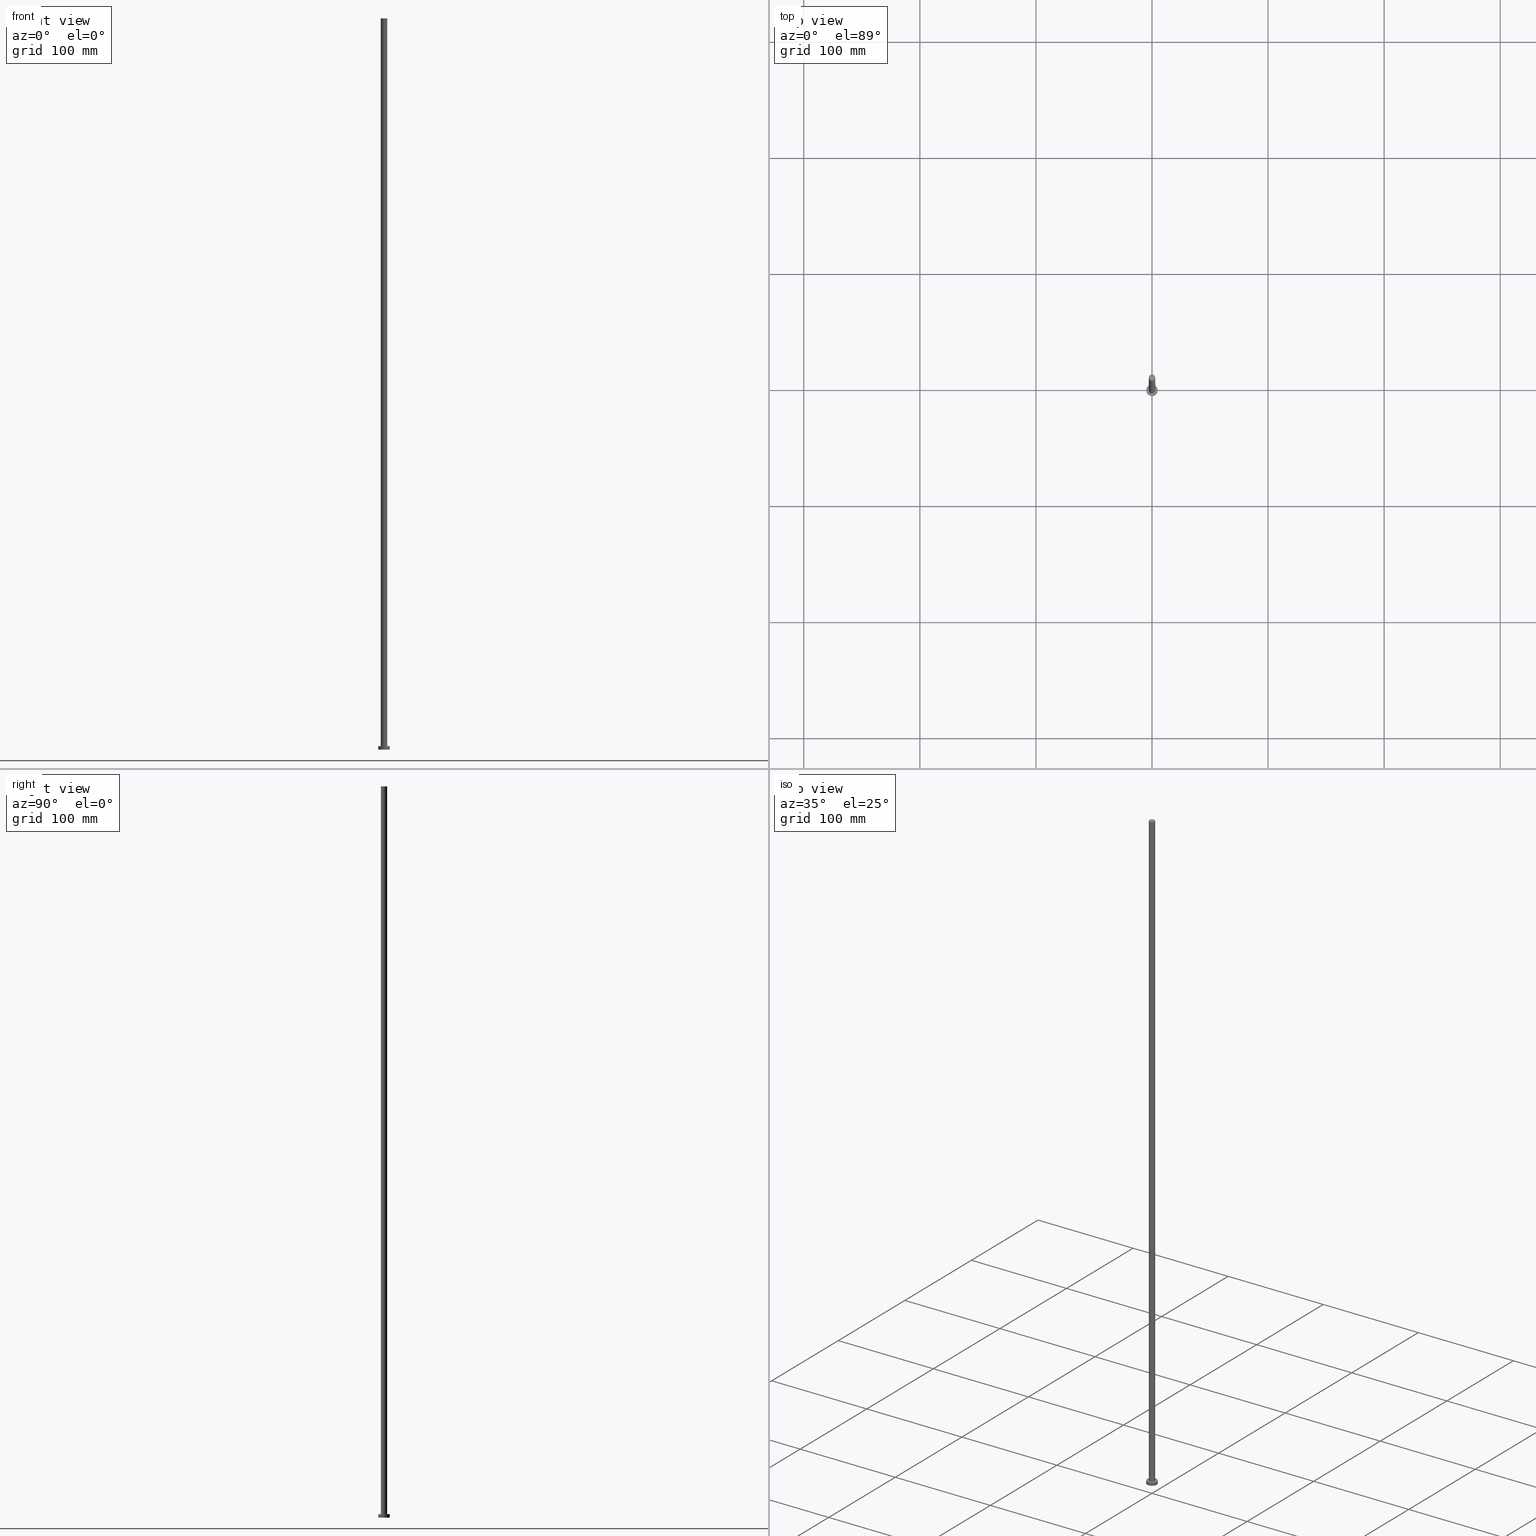
[diagram: canonical four-view strip — front | top / right | iso, engineering-drawing reading convention]
A machine part, canonical four-view strip (front | top / right | iso — engineering-drawing reading convention). The complete STEP part file that produces these views, byte-faithful:
ISO-10303-21;
HEADER;
FILE_DESCRIPTION (( 'STEP AP203' ),
    '1' );
FILE_NAME ('37a4.STEP',
    '2026-02-06T12:40:39',
    ( '' ),
    ( '' ),
    'SwSTEP 2.0',
    'SolidWorks 2019',
    '' );
FILE_SCHEMA (( 'CONFIG_CONTROL_DESIGN' ));
ENDSEC;

DATA;
#1 = LINE ( 'NONE', #174, #39 ) ;
#2 = PERSON_AND_ORGANIZATION_ROLE ( 'creator' ) ;
#3 = EDGE_CURVE ( 'NONE', #24, #222, #52, .T. ) ;
#4 = LOCAL_TIME ( 13, 40, 39.00000000000000000, #105 ) ;
#5 = ORIENTED_EDGE ( 'NONE', *, *, #44, .F. ) ;
#6 = AXIS2_PLACEMENT_3D ( 'NONE', #144, #227, #185 ) ;
#7 = PRODUCT_DEFINITION ( 'NEZN�M�', '', #132, #75 ) ;
#8 = ORGANIZATION ( 'NEUR�EN�', 'NEUR�EN�', '' ) ;
#9 = VECTOR ( 'NONE', #199, 1000.000000000000000 ) ;
#10 = AXIS2_PLACEMENT_3D ( 'NONE', #182, #115, #223 ) ;
#11 = EDGE_CURVE ( 'NONE', #112, #222, #241, .T. ) ;
#12 = CC_DESIGN_PERSON_AND_ORGANIZATION_ASSIGNMENT ( #155, #2, ( #7 ) ) ;
#13 = AXIS2_PLACEMENT_3D ( 'NONE', #216, #184, #64 ) ;
#14 = DIRECTION ( 'NONE',  ( 0.000000000000000000, 0.000000000000000000, 1.000000000000000000 ) ) ;
#15 = DIRECTION ( 'NONE',  ( 1.000000000000000000, 0.000000000000000000, 0.000000000000000000 ) ) ;
#16 = APPLICATION_PROTOCOL_DEFINITION ( 'international standard', 'config_control_design', 1994, #141 ) ;
#17 = DIRECTION ( 'NONE',  ( -0.000000000000000000, -0.000000000000000000, -1.000000000000000000 ) ) ;
#18 = ORIENTED_EDGE ( 'NONE', *, *, #250, .F. ) ;
#19 = CYLINDRICAL_SURFACE ( 'NONE', #248, 5.000000000000000000 ) ;
#20 = ORIENTED_EDGE ( 'NONE', *, *, #250, .T. ) ;
#21 = PERSON_AND_ORGANIZATION_ROLE ( 'design_supplier' ) ;
#22 = CARTESIAN_POINT ( 'NONE',  ( 0.000000000000000000, 0.000000000000000000, 3.000000000000000000 ) ) ;
#23 = DATE_AND_TIME ( #197, #84 ) ;
#24 = VERTEX_POINT ( 'NONE', #65 ) ;
#25 = EDGE_CURVE ( 'NONE', #72, #151, #226, .T. ) ;
#26 = CARTESIAN_POINT ( 'NONE',  ( -2.750000000000000000, 0.000000000000000000, 630.0000000000000000 ) ) ;
#27 = DATE_AND_TIME ( #240, #169 ) ;
#28 = CC_DESIGN_APPROVAL ( #114, ( #132 ) ) ;
#29 = APPROVAL_PERSON_ORGANIZATION ( #100, #79, #214 ) ;
#30 = CC_DESIGN_DATE_AND_TIME_ASSIGNMENT ( #63, #163, ( #7 ) ) ;
#31 =( NAMED_UNIT ( * ) PLANE_ANGLE_UNIT ( ) SI_UNIT ( $, .RADIAN. ) );
#32 = DIRECTION ( 'NONE',  ( 0.000000000000000000, 0.000000000000000000, 1.000000000000000000 ) ) ;
#33 = APPLICATION_CONTEXT ( 'configuration controlled 3d designs of mechanical parts and assemblies' ) ;
#34 = CC_DESIGN_PERSON_AND_ORGANIZATION_ASSIGNMENT ( #218, #43, ( #90 ) ) ;
#35 = VERTEX_POINT ( 'NONE', #168 ) ;
#36 = DIRECTION ( 'NONE',  ( 0.000000000000000000, 0.000000000000000000, 1.000000000000000000 ) ) ;
#37 = DIRECTION ( 'NONE',  ( -0.000000000000000000, -0.000000000000000000, -1.000000000000000000 ) ) ;
#38 = EDGE_LOOP ( 'NONE', ( #209, #18, #238, #236 ) ) ;
#39 = VECTOR ( 'NONE', #253, 1000.000000000000000 ) ;
#40 = AXIS2_PLACEMENT_3D ( 'NONE', #254, #87, #224 ) ;
#41 = COORDINATED_UNIVERSAL_TIME_OFFSET ( 1, 0, .AHEAD. ) ;
#42 = CARTESIAN_POINT ( 'NONE',  ( 5.000000000000000000, 6.123233995736766282E-16, 0.000000000000000000 ) ) ;
#43 = PERSON_AND_ORGANIZATION_ROLE ( 'classification_officer' ) ;
#44 = EDGE_CURVE ( 'NONE', #222, #24, #135, .T. ) ;
#45 = AXIS2_PLACEMENT_3D ( 'NONE', #246, #32, #66 ) ;
#46 = EDGE_CURVE ( 'NONE', #112, #35, #217, .T. ) ;
#47 = AXIS2_PLACEMENT_3D ( 'NONE', #245, #228, #130 ) ;
#48 = CIRCLE ( 'NONE', #89, 2.750000000000000000 ) ;
#49 = LOCAL_TIME ( 13, 40, 39.00000000000000000, #83 ) ;
#50 = ORIENTED_EDGE ( 'NONE', *, *, #142, .F. ) ;
#51 = PLANE ( 'NONE',  #131 ) ;
#52 = CIRCLE ( 'NONE', #40, 5.000000000000000000 ) ;
#53 = CARTESIAN_POINT ( 'NONE',  ( 0.000000000000000000, 0.000000000000000000, 3.000000000000000000 ) ) ;
#54 = ORIENTED_EDGE ( 'NONE', *, *, #239, .T. ) ;
#55 = DATE_AND_TIME ( #232, #4 ) ;
#56 = APPROVAL_DATE_TIME ( #55, #189 ) ;
#57 = PLANE ( 'NONE',  #108 ) ;
#58 = EDGE_LOOP ( 'NONE', ( #123, #50, #54, #191 ) ) ;
#59 = DIRECTION ( 'NONE',  ( 0.000000000000000000, 0.000000000000000000, 1.000000000000000000 ) ) ;
#60 = DIRECTION ( 'NONE',  ( -0.000000000000000000, -0.000000000000000000, -1.000000000000000000 ) ) ;
#61 = PERSON ( 'NEUR�EN�', 'NEUR�EN�', 'NEUR�EN�', ('NEUR�EN�'), ('NEUR�EN�'), ('NEUR�EN�') ) ;
#62 = APPROVAL_ROLE ( '' ) ;
#63 = DATE_AND_TIME ( #102, #49 ) ;
#64 = DIRECTION ( 'NONE',  ( 1.000000000000000000, 0.000000000000000000, 0.000000000000000000 ) ) ;
#65 = CARTESIAN_POINT ( 'NONE',  ( -5.000000000000000000, 0.000000000000000000, 0.000000000000000000 ) ) ;
#66 = DIRECTION ( 'NONE',  ( 1.000000000000000000, 0.000000000000000000, 0.000000000000000000 ) ) ;
#67 = CC_DESIGN_SECURITY_CLASSIFICATION ( #90, ( #132 ) ) ;
#68 = DATE_AND_TIME ( #178, #194 ) ;
#69 = UNCERTAINTY_MEASURE_WITH_UNIT (LENGTH_MEASURE( 1.000000000000000082E-05 ), #106, 'distance_accuracy_value', 'NONE');
#70 = FACE_OUTER_BOUND ( 'NONE', #38, .T. ) ;
#71 = ADVANCED_FACE ( 'NONE', ( #212, #181 ), #57, .T. ) ;
#72 = VERTEX_POINT ( 'NONE', #138 ) ;
#73 = AXIS2_PLACEMENT_3D ( 'NONE', #229, #110, #170 ) ;
#74 = CARTESIAN_POINT ( 'NONE',  ( 0.000000000000000000, 0.000000000000000000, 0.000000000000000000 ) ) ;
#75 = DESIGN_CONTEXT ( 'detailed design', #33, 'design' ) ;
#76 = APPROVAL_STATUS ( 'not_yet_approved' ) ;
#77 = APPROVAL_STATUS ( 'not_yet_approved' ) ;
#78 = DIRECTION ( 'NONE',  ( 1.000000000000000000, 0.000000000000000000, -0.000000000000000000 ) ) ;
#79 = APPROVAL ( #77, 'NEUR�EN�' ) ;
#80 = CARTESIAN_POINT ( 'NONE',  ( -2.750000000000000000, 0.000000000000000000, 3.000000000000000000 ) ) ;
#81 = ORIENTED_EDGE ( 'NONE', *, *, #46, .F. ) ;
#82 = DIRECTION ( 'NONE',  ( -0.000000000000000000, -0.000000000000000000, -1.000000000000000000 ) ) ;
#83 = COORDINATED_UNIVERSAL_TIME_OFFSET ( 1, 0, .AHEAD. ) ;
#84 = LOCAL_TIME ( 13, 40, 39.00000000000000000, #121 ) ;
#85 = ADVANCED_BREP_SHAPE_REPRESENTATION ( '37a4', ( #93, #10 ), #221 ) ;
#86 = APPROVAL_DATE_TIME ( #27, #114 ) ;
#87 = DIRECTION ( 'NONE',  ( 0.000000000000000000, 0.000000000000000000, 1.000000000000000000 ) ) ;
#88 = VECTOR ( 'NONE', #211, 1000.000000000000000 ) ;
#89 = AXIS2_PLACEMENT_3D ( 'NONE', #96, #14, #15 ) ;
#90 = SECURITY_CLASSIFICATION ( '', '', #177 ) ;
#91 = ADVANCED_FACE ( 'NONE', ( #122 ), #19, .T. ) ;
#92 = CARTESIAN_POINT ( 'NONE',  ( 2.750000000000000000, 3.367778697655221012E-16, 3.000000000000000000 ) ) ;
#93 = MANIFOLD_SOLID_BREP ( 'P�idat vysunut�m3', #242 ) ;
#94 = ADVANCED_FACE ( 'NONE', ( #219 ), #51, .T. ) ;
#95 = ORIENTED_EDGE ( 'NONE', *, *, #239, .F. ) ;
#96 = CARTESIAN_POINT ( 'NONE',  ( 0.000000000000000000, 0.000000000000000000, 3.000000000000000000 ) ) ;
#97 = PERSON_AND_ORGANIZATION ( #61, #8 ) ;
#98 = CARTESIAN_POINT ( 'NONE',  ( -5.000000000000000000, 0.000000000000000000, 3.000000000000000000 ) ) ;
#99 = ORIENTED_EDGE ( 'NONE', *, *, #142, .T. ) ;
#100 = PERSON_AND_ORGANIZATION ( #61, #8 ) ;
#101 = ORIENTED_EDGE ( 'NONE', *, *, #3, .F. ) ;
#102 = CALENDAR_DATE ( 2026, 6, 2 ) ;
#103 = EDGE_LOOP ( 'NONE', ( #81, #148, #134, #234 ) ) ;
#104 = APPROVAL_STATUS ( 'not_yet_approved' ) ;
#105 = COORDINATED_UNIVERSAL_TIME_OFFSET ( 1, 0, .AHEAD. ) ;
#106 =( LENGTH_UNIT ( ) NAMED_UNIT ( * ) SI_UNIT ( .MILLI., .METRE. ) );
#107 = CC_DESIGN_PERSON_AND_ORGANIZATION_ASSIGNMENT ( #143, #225, ( #132 ) ) ;
#108 = AXIS2_PLACEMENT_3D ( 'NONE', #22, #136, #78 ) ;
#109 = EDGE_CURVE ( 'NONE', #171, #151, #48, .T. ) ;
#110 = DIRECTION ( 'NONE',  ( 0.000000000000000000, 0.000000000000000000, 1.000000000000000000 ) ) ;
#111 = LINE ( 'NONE', #98, #88 ) ;
#112 = VERTEX_POINT ( 'NONE', #172 ) ;
#113 = EDGE_LOOP ( 'NONE', ( #99, #196 ) ) ;
#114 = APPROVAL ( #104, 'NEUR�EN�' ) ;
#115 = DIRECTION ( 'NONE',  ( 0.000000000000000000, 0.000000000000000000, 1.000000000000000000 ) ) ;
#116 = ORIENTED_EDGE ( 'NONE', *, *, #109, .F. ) ;
#117 = AXIS2_PLACEMENT_3D ( 'NONE', #53, #17, #133 ) ;
#118 = SHAPE_DEFINITION_REPRESENTATION ( #220, #85 ) ;
#119 = CYLINDRICAL_SURFACE ( 'NONE', #117, 5.000000000000000000 ) ;
#120 = ORIENTED_EDGE ( 'NONE', *, *, #244, .T. ) ;
#121 = COORDINATED_UNIVERSAL_TIME_OFFSET ( 1, 0, .AHEAD. ) ;
#122 = FACE_OUTER_BOUND ( 'NONE', #103, .T. ) ;
#123 = ORIENTED_EDGE ( 'NONE', *, *, #25, .F. ) ;
#124 = CARTESIAN_POINT ( 'NONE',  ( 2.750000000000000000, 3.367778697655221012E-16, 630.0000000000000000 ) ) ;
#125 = ADVANCED_FACE ( 'NONE', ( #150 ), #231, .T. ) ;
#126 = AXIS2_PLACEMENT_3D ( 'NONE', #251, #37, #176 ) ;
#127 = CC_DESIGN_DATE_AND_TIME_ASSIGNMENT ( #23, #180, ( #90 ) ) ;
#128 = DIRECTION ( 'NONE',  ( -1.000000000000000000, 0.000000000000000000, 0.000000000000000000 ) ) ;
#129 = APPROVAL_PERSON_ORGANIZATION ( #97, #189, #164 ) ;
#130 = DIRECTION ( 'NONE',  ( 1.000000000000000000, 0.000000000000000000, 0.000000000000000000 ) ) ;
#131 = AXIS2_PLACEMENT_3D ( 'NONE', #207, #59, #140 ) ;
#132 = PRODUCT_DEFINITION_FORMATION_WITH_SPECIFIED_SOURCE ( 'LIBOVOLN�', '', #158, .NOT_KNOWN. ) ;
#133 = DIRECTION ( 'NONE',  ( -1.000000000000000000, 0.000000000000000000, 0.000000000000000000 ) ) ;
#134 = ORIENTED_EDGE ( 'NONE', *, *, #44, .T. ) ;
#135 = CIRCLE ( 'NONE', #45, 5.000000000000000000 ) ;
#136 = DIRECTION ( 'NONE',  ( 0.000000000000000000, 0.000000000000000000, 1.000000000000000000 ) ) ;
#137 = FACE_OUTER_BOUND ( 'NONE', #58, .T. ) ;
#138 = CARTESIAN_POINT ( 'NONE',  ( 2.750000000000000000, 3.367778697655221012E-16, 630.0000000000000000 ) ) ;
#139 = AXIS2_PLACEMENT_3D ( 'NONE', #210, #166, #128 ) ;
#140 = DIRECTION ( 'NONE',  ( 1.000000000000000000, 0.000000000000000000, -0.000000000000000000 ) ) ;
#141 = APPLICATION_CONTEXT ( 'configuration controlled 3d designs of mechanical parts and assemblies' ) ;
#142 = EDGE_CURVE ( 'NONE', #252, #72, #230, .T. ) ;
#143 = PERSON_AND_ORGANIZATION ( #61, #8 ) ;
#144 = CARTESIAN_POINT ( 'NONE',  ( 0.000000000000000000, 0.000000000000000000, 630.0000000000000000 ) ) ;
#145 = CC_DESIGN_APPROVAL ( #189, ( #90 ) ) ;
#146 = AXIS2_PLACEMENT_3D ( 'NONE', #74, #36, #195 ) ;
#147 = CARTESIAN_POINT ( 'NONE',  ( 0.000000000000000000, 0.000000000000000000, 3.000000000000000000 ) ) ;
#148 = ORIENTED_EDGE ( 'NONE', *, *, #11, .T. ) ;
#149 = APPROVAL_DATE_TIME ( #68, #79 ) ;
#150 = FACE_OUTER_BOUND ( 'NONE', #175, .T. ) ;
#151 = VERTEX_POINT ( 'NONE', #92 ) ;
#152 = CC_DESIGN_PERSON_AND_ORGANIZATION_ASSIGNMENT ( #173, #192, ( #158 ) ) ;
#153 = APPLICATION_PROTOCOL_DEFINITION ( 'international standard', 'config_control_design', 1994, #33 ) ;
#154 = ORIENTED_EDGE ( 'NONE', *, *, #157, .F. ) ;
#155 = PERSON_AND_ORGANIZATION ( #61, #8 ) ;
#156 = CARTESIAN_POINT ( 'NONE',  ( 0.000000000000000000, 0.000000000000000000, 3.000000000000000000 ) ) ;
#157 = EDGE_CURVE ( 'NONE', #72, #252, #161, .T. ) ;
#158 = PRODUCT ( '37a4', '37a4', '', ( #162 ) ) ;
#159 = EDGE_LOOP ( 'NONE', ( #101, #5 ) ) ;
#160 = DIRECTION ( 'NONE',  ( -1.000000000000000000, 0.000000000000000000, 0.000000000000000000 ) ) ;
#161 = CIRCLE ( 'NONE', #47, 2.750000000000000000 ) ;
#162 = MECHANICAL_CONTEXT ( 'NONE', #141, 'mechanical' ) ;
#163 = DATE_TIME_ROLE ( 'creation_date' ) ;
#164 = APPROVAL_ROLE ( '' ) ;
#165 = PERSON_AND_ORGANIZATION ( #61, #8 ) ;
#166 = DIRECTION ( 'NONE',  ( -0.000000000000000000, -0.000000000000000000, -1.000000000000000000 ) ) ;
#167 = CARTESIAN_POINT ( 'NONE',  ( 5.000000000000000000, 6.123233995736766282E-16, 3.000000000000000000 ) ) ;
#168 = CARTESIAN_POINT ( 'NONE',  ( -5.000000000000000000, 0.000000000000000000, 3.000000000000000000 ) ) ;
#169 = LOCAL_TIME ( 13, 40, 39.00000000000000000, #198 ) ;
#170 = DIRECTION ( 'NONE',  ( 1.000000000000000000, 0.000000000000000000, 0.000000000000000000 ) ) ;
#171 = VERTEX_POINT ( 'NONE', #80 ) ;
#172 = CARTESIAN_POINT ( 'NONE',  ( 5.000000000000000000, 6.123233995736766282E-16, 3.000000000000000000 ) ) ;
#173 = PERSON_AND_ORGANIZATION ( #61, #8 ) ;
#174 = CARTESIAN_POINT ( 'NONE',  ( -2.750000000000000000, 0.000000000000000000, 630.0000000000000000 ) ) ;
#175 = EDGE_LOOP ( 'NONE', ( #154, #190, #120, #95 ) ) ;
#176 = DIRECTION ( 'NONE',  ( -1.000000000000000000, 0.000000000000000000, 0.000000000000000000 ) ) ;
#177 = SECURITY_CLASSIFICATION_LEVEL ( 'unclassified' ) ;
#178 = CALENDAR_DATE ( 2026, 6, 2 ) ;
#179 = EDGE_LOOP ( 'NONE', ( #116, #183 ) ) ;
#180 = DATE_TIME_ROLE ( 'classification_date' ) ;
#181 = FACE_OUTER_BOUND ( 'NONE', #243, .T. ) ;
#182 = CARTESIAN_POINT ( 'NONE',  ( 0.000000000000000000, 0.000000000000000000, 0.000000000000000000 ) ) ;
#183 = ORIENTED_EDGE ( 'NONE', *, *, #244, .F. ) ;
#184 = DIRECTION ( 'NONE',  ( 0.000000000000000000, 0.000000000000000000, 1.000000000000000000 ) ) ;
#185 = DIRECTION ( 'NONE',  ( 1.000000000000000000, 0.000000000000000000, 0.000000000000000000 ) ) ;
#186 = APPROVAL_PERSON_ORGANIZATION ( #165, #114, #62 ) ;
#187 =( NAMED_UNIT ( * ) SI_UNIT ( $, .STERADIAN. ) SOLID_ANGLE_UNIT ( ) );
#188 = DIRECTION ( 'NONE',  ( 1.000000000000000000, 0.000000000000000000, 0.000000000000000000 ) ) ;
#189 = APPROVAL ( #76, 'NEUR�EN�' ) ;
#190 = ORIENTED_EDGE ( 'NONE', *, *, #25, .T. ) ;
#191 = ORIENTED_EDGE ( 'NONE', *, *, #109, .T. ) ;
#192 = PERSON_AND_ORGANIZATION_ROLE ( 'design_owner' ) ;
#193 = ORIENTED_EDGE ( 'NONE', *, *, #46, .T. ) ;
#194 = LOCAL_TIME ( 13, 40, 39.00000000000000000, #41 ) ;
#195 = DIRECTION ( 'NONE',  ( 1.000000000000000000, 0.000000000000000000, -0.000000000000000000 ) ) ;
#196 = ORIENTED_EDGE ( 'NONE', *, *, #157, .T. ) ;
#197 = CALENDAR_DATE ( 2026, 6, 2 ) ;
#198 = COORDINATED_UNIVERSAL_TIME_OFFSET ( 1, 0, .AHEAD. ) ;
#199 = DIRECTION ( 'NONE',  ( -0.000000000000000000, -0.000000000000000000, -1.000000000000000000 ) ) ;
#200 = ADVANCED_FACE ( 'NONE', ( #70 ), #119, .T. ) ;
#201 = PRODUCT_RELATED_PRODUCT_CATEGORY ( 'detail', '', ( #158 ) ) ;
#202 = CC_DESIGN_APPROVAL ( #79, ( #7 ) ) ;
#203 = PLANE ( 'NONE',  #146 ) ;
#204 = CC_DESIGN_PERSON_AND_ORGANIZATION_ASSIGNMENT ( #255, #21, ( #132 ) ) ;
#205 = VECTOR ( 'NONE', #60, 1000.000000000000000 ) ;
#206 = EDGE_CURVE ( 'NONE', #35, #24, #111, .T. ) ;
#207 = CARTESIAN_POINT ( 'NONE',  ( 0.000000000000000000, 0.000000000000000000, 630.0000000000000000 ) ) ;
#208 = FACE_OUTER_BOUND ( 'NONE', #159, .T. ) ;
#209 = ORIENTED_EDGE ( 'NONE', *, *, #11, .F. ) ;
#210 = CARTESIAN_POINT ( 'NONE',  ( 0.000000000000000000, 0.000000000000000000, 630.0000000000000000 ) ) ;
#211 = DIRECTION ( 'NONE',  ( -0.000000000000000000, -0.000000000000000000, -1.000000000000000000 ) ) ;
#212 = FACE_BOUND ( 'NONE', #179, .T. ) ;
#213 = ADVANCED_FACE ( 'NONE', ( #208 ), #203, .F. ) ;
#214 = APPROVAL_ROLE ( '' ) ;
#215 = CIRCLE ( 'NONE', #237, 2.750000000000000000 ) ;
#216 = CARTESIAN_POINT ( 'NONE',  ( 0.000000000000000000, 0.000000000000000000, 3.000000000000000000 ) ) ;
#217 = CIRCLE ( 'NONE', #73, 5.000000000000000000 ) ;
#218 = PERSON_AND_ORGANIZATION ( #61, #8 ) ;
#219 = FACE_OUTER_BOUND ( 'NONE', #113, .T. ) ;
#220 = PRODUCT_DEFINITION_SHAPE ( 'NONE', 'NONE',  #7 ) ;
#221 =( GEOMETRIC_REPRESENTATION_CONTEXT ( 3 ) GLOBAL_UNCERTAINTY_ASSIGNED_CONTEXT ( ( #69 ) ) GLOBAL_UNIT_ASSIGNED_CONTEXT ( ( #106, #31, #187 ) ) REPRESENTATION_CONTEXT ( 'NONE', 'WORKASPACE' ) );
#222 = VERTEX_POINT ( 'NONE', #42 ) ;
#223 = DIRECTION ( 'NONE',  ( 1.000000000000000000, 0.000000000000000000, 0.000000000000000000 ) ) ;
#224 = DIRECTION ( 'NONE',  ( 1.000000000000000000, 0.000000000000000000, 0.000000000000000000 ) ) ;
#225 = PERSON_AND_ORGANIZATION_ROLE ( 'creator' ) ;
#226 = LINE ( 'NONE', #124, #9 ) ;
#227 = DIRECTION ( 'NONE',  ( 0.000000000000000000, 0.000000000000000000, 1.000000000000000000 ) ) ;
#228 = DIRECTION ( 'NONE',  ( 0.000000000000000000, 0.000000000000000000, 1.000000000000000000 ) ) ;
#229 = CARTESIAN_POINT ( 'NONE',  ( 0.000000000000000000, 0.000000000000000000, 3.000000000000000000 ) ) ;
#230 = CIRCLE ( 'NONE', #6, 2.750000000000000000 ) ;
#231 = CYLINDRICAL_SURFACE ( 'NONE', #139, 2.750000000000000000 ) ;
#232 = CALENDAR_DATE ( 2026, 6, 2 ) ;
#233 = CYLINDRICAL_SURFACE ( 'NONE', #126, 2.750000000000000000 ) ;
#234 = ORIENTED_EDGE ( 'NONE', *, *, #206, .F. ) ;
#235 = DIRECTION ( 'NONE',  ( 0.000000000000000000, 0.000000000000000000, 1.000000000000000000 ) ) ;
#236 = ORIENTED_EDGE ( 'NONE', *, *, #3, .T. ) ;
#237 = AXIS2_PLACEMENT_3D ( 'NONE', #147, #235, #188 ) ;
#238 = ORIENTED_EDGE ( 'NONE', *, *, #206, .T. ) ;
#239 = EDGE_CURVE ( 'NONE', #252, #171, #1, .T. ) ;
#240 = CALENDAR_DATE ( 2026, 6, 2 ) ;
#241 = LINE ( 'NONE', #167, #205 ) ;
#242 = CLOSED_SHELL ( 'NONE', ( #125, #91, #200, #71, #213, #249, #94 ) ) ;
#243 = EDGE_LOOP ( 'NONE', ( #20, #193 ) ) ;
#244 = EDGE_CURVE ( 'NONE', #151, #171, #215, .T. ) ;
#245 = CARTESIAN_POINT ( 'NONE',  ( 0.000000000000000000, 0.000000000000000000, 630.0000000000000000 ) ) ;
#246 = CARTESIAN_POINT ( 'NONE',  ( 0.000000000000000000, 0.000000000000000000, 0.000000000000000000 ) ) ;
#247 = CIRCLE ( 'NONE', #13, 5.000000000000000000 ) ;
#248 = AXIS2_PLACEMENT_3D ( 'NONE', #156, #82, #160 ) ;
#249 = ADVANCED_FACE ( 'NONE', ( #137 ), #233, .T. ) ;
#250 = EDGE_CURVE ( 'NONE', #35, #112, #247, .T. ) ;
#251 = CARTESIAN_POINT ( 'NONE',  ( 0.000000000000000000, 0.000000000000000000, 630.0000000000000000 ) ) ;
#252 = VERTEX_POINT ( 'NONE', #26 ) ;
#253 = DIRECTION ( 'NONE',  ( -0.000000000000000000, -0.000000000000000000, -1.000000000000000000 ) ) ;
#254 = CARTESIAN_POINT ( 'NONE',  ( 0.000000000000000000, 0.000000000000000000, 0.000000000000000000 ) ) ;
#255 = PERSON_AND_ORGANIZATION ( #61, #8 ) ;
ENDSEC;
END-ISO-10303-21;
